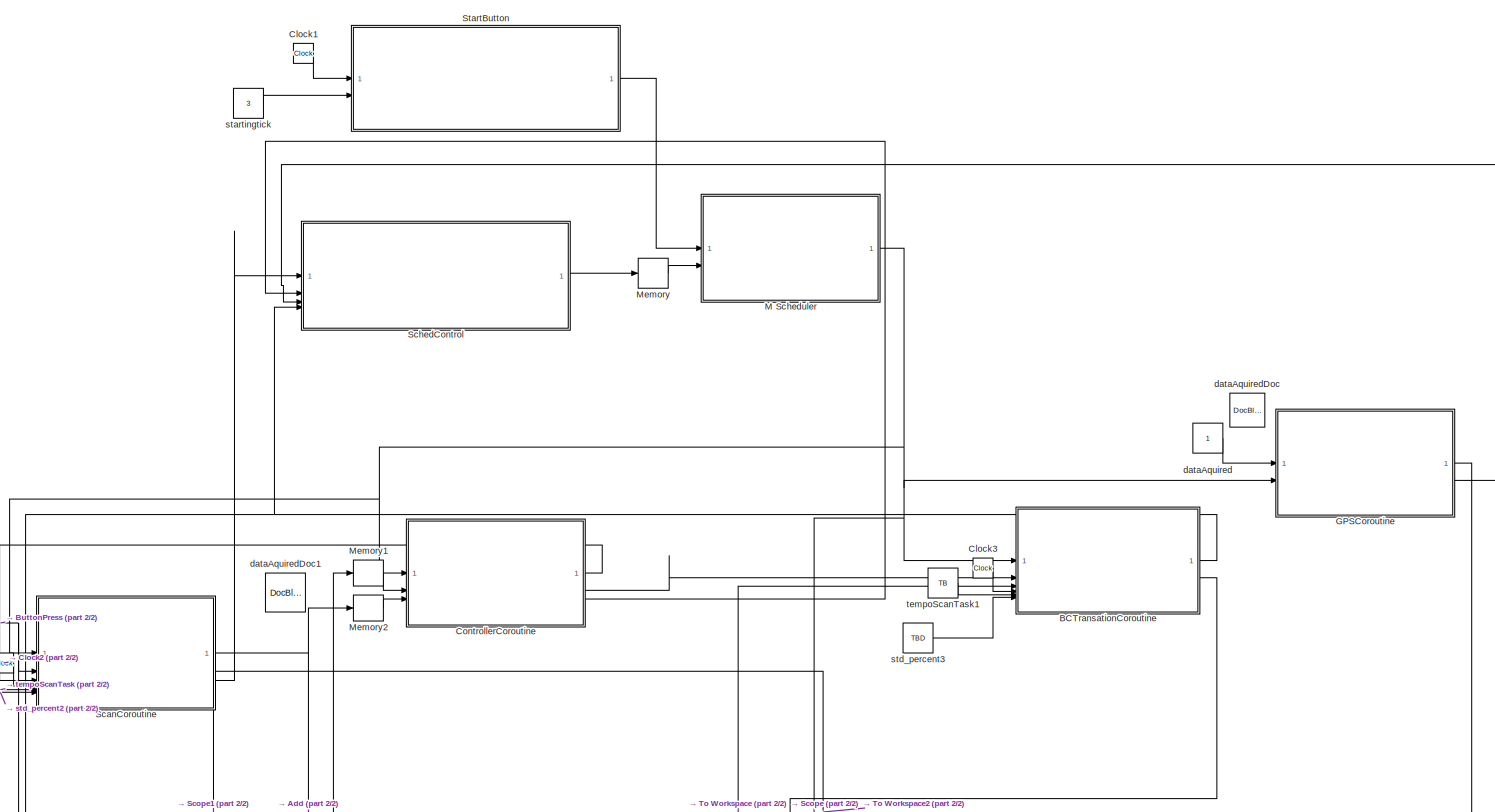
[diagram: root canvas - part 1/2, full width, middle band]
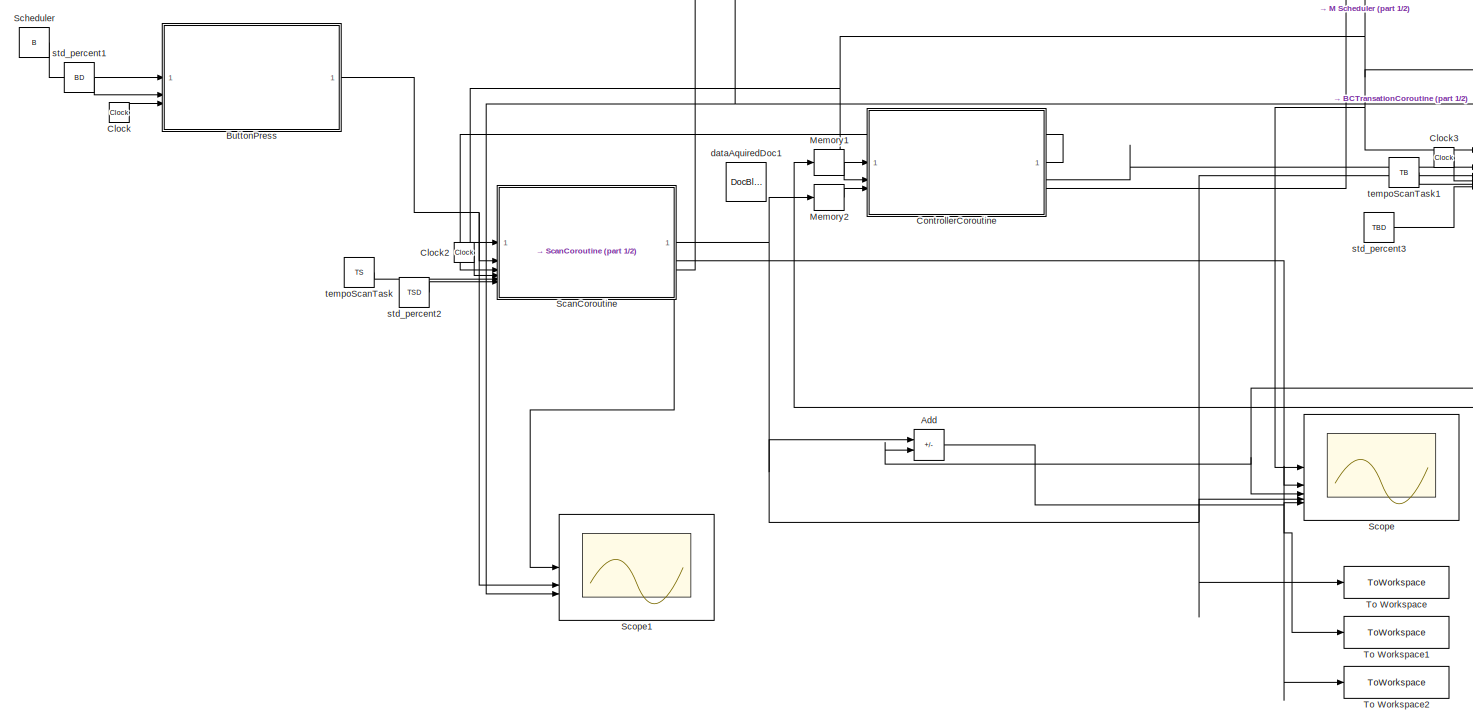
[diagram: root canvas - part 2/2, full width, bottom band]
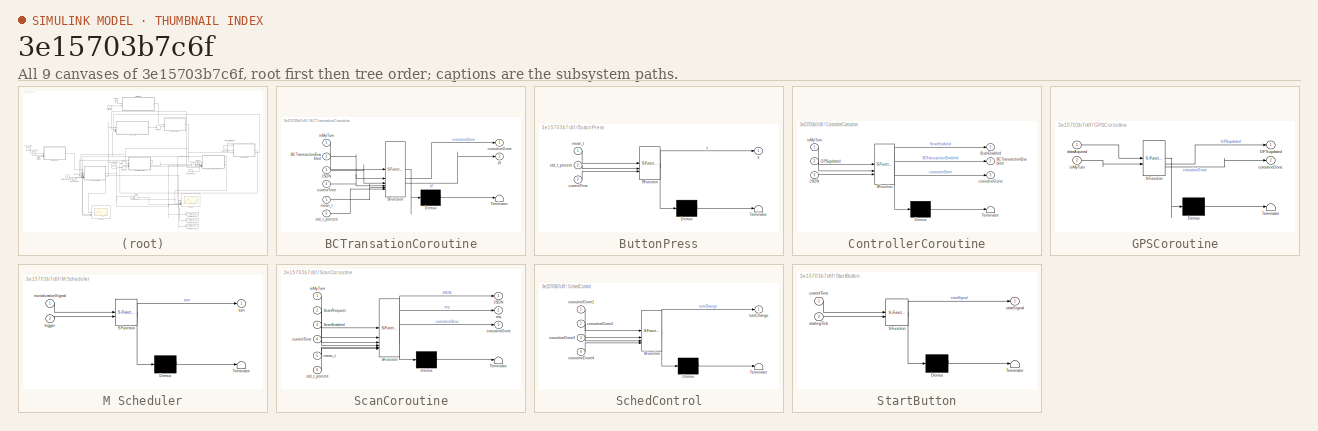
[diagram: thumbnail index - all 9 canvases of the model, root first then tree order]
MODEL slx_3e15703b7c6f
KIND model
CONFIG AbsTol = auto
CONFIG EnableMultiTasking = off
CONFIG FixedStep = 1
CONFIG MaxStep = auto
CONFIG MinStep = auto
CONFIG RelTol = 1e-3
CONFIG SampleTimeConstraint = Unconstrained
CONFIG SolverName = FixedStepAuto
CONFIG StartTime = 0.0
CONFIG StopTime = 100
BLOCK [Sum] Add
  IconShape = rectangular
  Inputs = +-
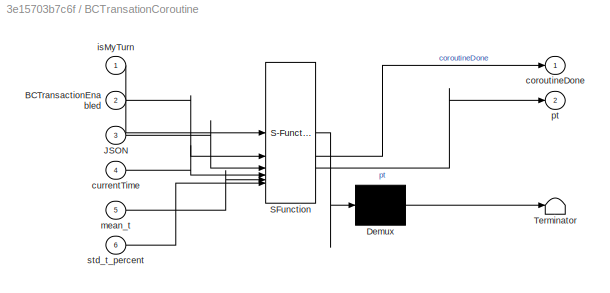
BLOCK [SubSystem] BCTransationCoroutine
  ErrorFcn = Stateflow.Translate.translate
  LibrarySourceBlock = simulink/User-Defined\nFunctions/MATLAB Function
  PermitHierarchicalResolution = ExplicitOnly
  SFBlockType = MATLAB Function
  TreatAsAtomicUnit = on
BLOCK [Demux] BCTransationCoroutine/ Demux 
  Outputs = 1
BLOCK [S-Function] BCTransationCoroutine/ SFunction 
  EnableBusSupport = on
  FunctionName = sf_sfun
  PortCounts = [6 3]
  SFcnIsStateOwnerBlock = off
  SFunctionDeploymentMode = off
  Tag = Stateflow S-Function 8
BLOCK [Terminator] BCTransationCoroutine/ Terminator 
BLOCK [Inport] BCTransationCoroutine/BCTransactionEnabled
  Port = 2
BLOCK [Inport] BCTransationCoroutine/JSON
  Port = 3
BLOCK [Outport] BCTransationCoroutine/coroutineDone
BLOCK [Inport] BCTransationCoroutine/currentTime
  Port = 4
BLOCK [Inport] BCTransationCoroutine/isMyTurn
BLOCK [Inport] BCTransationCoroutine/mean_t
  Port = 5
BLOCK [Outport] BCTransationCoroutine/pt
  Port = 2
BLOCK [Inport] BCTransationCoroutine/std_t_percent
  Port = 6
BLOCK [SubSystem] ButtonPress
  ErrorFcn = Stateflow.Translate.translate
  LibrarySourceBlock = simulink/User-Defined\nFunctions/MATLAB Function
  PermitHierarchicalResolution = ExplicitOnly
  SFBlockType = MATLAB Function
  TreatAsAtomicUnit = on
BLOCK [Demux] ButtonPress/ Demux 
  Outputs = 1
BLOCK [S-Function] ButtonPress/ SFunction 
  EnableBusSupport = on
  FunctionName = sf_sfun
  PortCounts = [3 2]
  SFcnIsStateOwnerBlock = off
  SFunctionDeploymentMode = off
  Tag = Stateflow S-Function 2
BLOCK [Terminator] ButtonPress/ Terminator 
BLOCK [Inport] ButtonPress/currentTime
  Port = 3
BLOCK [Inport] ButtonPress/mean_t
BLOCK [Inport] ButtonPress/std_t_percent
  Port = 2
BLOCK [Outport] ButtonPress/y
BLOCK [Clock] Clock
  DisplayTime = on
BLOCK [Clock] Clock1
  DisplayTime = on
BLOCK [Clock] Clock2
  DisplayTime = on
BLOCK [Clock] Clock3
  DisplayTime = on
BLOCK [SubSystem] ControllerCoroutine
  ErrorFcn = Stateflow.Translate.translate
  LibrarySourceBlock = simulink/User-Defined\nFunctions/MATLAB Function
  PermitHierarchicalResolution = ExplicitOnly
  SFBlockType = MATLAB Function
  TreatAsAtomicUnit = on
BLOCK [Demux] ControllerCoroutine/ Demux 
  Outputs = 1
BLOCK [S-Function] ControllerCoroutine/ SFunction 
  EnableBusSupport = on
  FunctionName = sf_sfun
  PortCounts = [3 4]
  SFcnIsStateOwnerBlock = off
  SFunctionDeploymentMode = off
  Tag = Stateflow S-Function 3
BLOCK [Terminator] ControllerCoroutine/ Terminator 
BLOCK [Outport] ControllerCoroutine/BCTransactionEnabled
  Port = 2
BLOCK [Inport] ControllerCoroutine/GPSupdated
  Port = 2
BLOCK [Inport] ControllerCoroutine/JSON
  Port = 3
BLOCK [Outport] ControllerCoroutine/ScanEnabled
BLOCK [Outport] ControllerCoroutine/coroutineDone
  Port = 3
BLOCK [Inport] ControllerCoroutine/isMyTurn
BLOCK [SubSystem] GPSCoroutine
  ErrorFcn = Stateflow.Translate.translate
  LibrarySourceBlock = simulink/User-Defined\nFunctions/MATLAB Function
  PermitHierarchicalResolution = ExplicitOnly
  SFBlockType = MATLAB Function
  TreatAsAtomicUnit = on
BLOCK [Demux] GPSCoroutine/ Demux 
  Outputs = 1
BLOCK [S-Function] GPSCoroutine/ SFunction 
  EnableBusSupport = on
  FunctionName = sf_sfun
  PortCounts = [2 3]
  SFcnIsStateOwnerBlock = off
  SFunctionDeploymentMode = off
  Tag = Stateflow S-Function 1
BLOCK [Terminator] GPSCoroutine/ Terminator 
BLOCK [Outport] GPSCoroutine/GPSupdated
BLOCK [Outport] GPSCoroutine/coroutineDone
  Port = 2
BLOCK [Inport] GPSCoroutine/dataAquired
BLOCK [Inport] GPSCoroutine/isMyTurn
  Port = 2
BLOCK [SubSystem] M Scheduler
  ErrorFcn = Stateflow.Translate.translate
  LibrarySourceBlock = simulink/User-Defined\nFunctions/MATLAB Function
  PermitHierarchicalResolution = ExplicitOnly
  SFBlockType = MATLAB Function
  TreatAsAtomicUnit = on
BLOCK [Demux] M Scheduler/ Demux 
  Outputs = 1
BLOCK [S-Function] M Scheduler/ SFunction 
  EnableBusSupport = on
  FunctionName = sf_sfun
  PortCounts = [2 2]
  SFcnIsStateOwnerBlock = off
  SFunctionDeploymentMode = off
  Tag = Stateflow S-Function 4
BLOCK [Terminator] M Scheduler/ Terminator 
BLOCK [Inport] M Scheduler/inizializationSignal
BLOCK [Inport] M Scheduler/trigger
  Port = 2
BLOCK [Outport] M Scheduler/turn
BLOCK [Memory] Memory
BLOCK [Memory] Memory1
BLOCK [Memory] Memory2
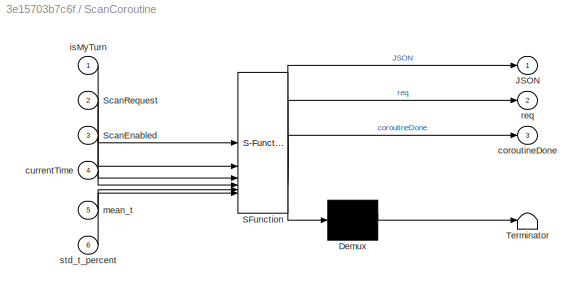
BLOCK [SubSystem] ScanCoroutine
  ErrorFcn = Stateflow.Translate.translate
  LibrarySourceBlock = simulink/User-Defined\nFunctions/MATLAB Function
  PermitHierarchicalResolution = ExplicitOnly
  SFBlockType = MATLAB Function
  TreatAsAtomicUnit = on
BLOCK [Demux] ScanCoroutine/ Demux 
  Outputs = 1
BLOCK [S-Function] ScanCoroutine/ SFunction 
  EnableBusSupport = on
  FunctionName = sf_sfun
  PortCounts = [6 4]
  SFcnIsStateOwnerBlock = off
  SFunctionDeploymentMode = off
  Tag = Stateflow S-Function 5
BLOCK [Terminator] ScanCoroutine/ Terminator 
BLOCK [Outport] ScanCoroutine/JSON
BLOCK [Inport] ScanCoroutine/ScanEnabled
  Port = 3
BLOCK [Inport] ScanCoroutine/ScanRequest
  Port = 2
BLOCK [Outport] ScanCoroutine/coroutineDone
  Port = 3
BLOCK [Inport] ScanCoroutine/currentTime
  Port = 4
BLOCK [Inport] ScanCoroutine/isMyTurn
BLOCK [Inport] ScanCoroutine/mean_t
  Port = 5
BLOCK [Outport] ScanCoroutine/req
  Port = 2
BLOCK [Inport] ScanCoroutine/std_t_percent
  Port = 6
BLOCK [SubSystem] SchedControl
  ErrorFcn = Stateflow.Translate.translate
  LibrarySourceBlock = simulink/User-Defined\nFunctions/MATLAB Function
  PermitHierarchicalResolution = ExplicitOnly
  SFBlockType = MATLAB Function
  TreatAsAtomicUnit = on
BLOCK [Demux] SchedControl/ Demux 
  Outputs = 1
BLOCK [S-Function] SchedControl/ SFunction 
  EnableBusSupport = on
  FunctionName = sf_sfun
  PortCounts = [4 2]
  SFcnIsStateOwnerBlock = off
  SFunctionDeploymentMode = off
  Tag = Stateflow S-Function 6
BLOCK [Terminator] SchedControl/ Terminator 
BLOCK [Inport] SchedControl/coroutineDone1
BLOCK [Inport] SchedControl/coroutineDone2
  Port = 2
BLOCK [Inport] SchedControl/coroutineDone3
  Port = 3
BLOCK [Inport] SchedControl/coroutineDone4
  Port = 4
BLOCK [Outport] SchedControl/turnChange
BLOCK [Constant] Scheduler
  Value = B
BLOCK [Scope] Scope
  Floating = off
  NumInputPorts = 5
  ScopeSpecificationString = Simulink.scopes.TimeScopeBlockCfg('CurrentConfiguration', extmgr.ConfigurationSet(extmgr.Configuration('Core','General UI',true),extmgr.Configuration('Core','Source UI',true),extmgr.Configuration('Sources','WiredSimulink',true),extmgr.Configuration('Visuals','Time Domain',true,'SerializedDisplays',{struct('MinYLimReal','-3.625','MaxYLimReal','22.625','YLabelReal','','MinYLimMag','0.00000','MaxYLim...<+1650ch>
BLOCK [Scope] Scope1
  Floating = off
  NumInputPorts = 5
  ScopeSpecificationString = Simulink.scopes.TimeScopeBlockCfg('CurrentConfiguration', extmgr.ConfigurationSet(extmgr.Configuration('Core','General UI',true),extmgr.Configuration('Core','Source UI',true),extmgr.Configuration('Sources','WiredSimulink',true,'DataLoggingVariableName','ScopeData1'),extmgr.Configuration('Visuals','Time Domain',true,'SerializedDisplays',{struct('MinYLimReal','-0.125','MaxYLimReal','2.5','YLabelReal...<+1682ch>
BLOCK [SubSystem] StartButton
  ErrorFcn = Stateflow.Translate.translate
  LibrarySourceBlock = simulink/User-Defined\nFunctions/MATLAB Function
  PermitHierarchicalResolution = ExplicitOnly
  SFBlockType = MATLAB Function
  TreatAsAtomicUnit = on
BLOCK [Demux] StartButton/ Demux 
  Outputs = 1
BLOCK [S-Function] StartButton/ SFunction 
  EnableBusSupport = on
  FunctionName = sf_sfun
  PortCounts = [2 2]
  SFcnIsStateOwnerBlock = off
  SFunctionDeploymentMode = off
  Tag = Stateflow S-Function 7
BLOCK [Terminator] StartButton/ Terminator 
BLOCK [Inport] StartButton/currentTime
BLOCK [Outport] StartButton/startSignal
BLOCK [Inport] StartButton/startingTick
  Port = 2
BLOCK [ToWorkspace] To Workspace
  FixptAsFi = on
  MaxDataPoints = inf
  SampleTime = -1
  SaveFormat = Timeseries
  VariableName = json
BLOCK [ToWorkspace] To Workspace1
  FixptAsFi = on
  MaxDataPoints = inf
  SampleTime = -1
  SaveFormat = Timeseries
  VariableName = bctQueue
BLOCK [ToWorkspace] To Workspace2
  FixptAsFi = on
  MaxDataPoints = inf
  SampleTime = -1
  SaveFormat = Timeseries
  VariableName = requests
BLOCK [Constant] dataAquired
BLOCK [Reference] dataAquiredDoc  REF=simulink/Model-Wide
Utilities/DocBlock
  SourceBlock = simulink/Model-Wide\nUtilities/DocBlock
  SourceType = DocBlock
  UserDataPersistent = on
BLOCK [Reference] dataAquiredDoc1  REF=simulink/Model-Wide
Utilities/DocBlock
  SourceBlock = simulink/Model-Wide\nUtilities/DocBlock
  SourceType = DocBlock
  UserDataPersistent = on
BLOCK [Constant] startingtick
  Value = 3
BLOCK [Constant] std_percent1
  Value = BD
BLOCK [Constant] std_percent2
  Value = TSD
BLOCK [Constant] std_percent3
  Value = TBD
BLOCK [Constant] tempoScanTask
  Value = TS
BLOCK [Constant] tempoScanTask1
  Value = TB
NET Add:1 -> Scope:5, To Workspace1:1
NET BCTransationCoroutine:1 -> SchedControl:4, Scope1:3
NET BCTransationCoroutine:2 -> Add:2, Scope:3
NET ButtonPress:1 -> ScanCoroutine:2, Scope1:2
LINE Clock1:1 -> StartButton:1
LINE Clock2:1 -> ScanCoroutine:4
LINE Clock3:1 -> BCTransationCoroutine:4
LINE Clock:1 -> ButtonPress:3
LINE ControllerCoroutine:1 -> ScanCoroutine:3
LINE ControllerCoroutine:2 -> BCTransationCoroutine:2
LINE ControllerCoroutine:3 -> SchedControl:2
LINE GPSCoroutine:1 -> Memory1:1
LINE GPSCoroutine:2 -> SchedControl:3
NET M Scheduler:1 -> BCTransationCoroutine:1, ControllerCoroutine:1, GPSCoroutine:2, ScanCoroutine:1, Scope:1
LINE Memory1:1 -> ControllerCoroutine:2
LINE Memory2:1 -> ControllerCoroutine:3
LINE Memory:1 -> M Scheduler:2
NET ScanCoroutine:1 -> Add:1, BCTransationCoroutine:3, Memory2:1, Scope:4, To Workspace:1
NET ScanCoroutine:2 -> Scope:2, To Workspace2:1
NET ScanCoroutine:3 -> SchedControl:1, Scope1:1
LINE SchedControl:1 -> Memory:1
LINE Scheduler:1 -> ButtonPress:1
LINE StartButton:1 -> M Scheduler:1
LINE dataAquired:1 -> GPSCoroutine:1
LINE startingtick:1 -> StartButton:2
LINE std_percent1:1 -> ButtonPress:2
LINE std_percent2:1 -> ScanCoroutine:6
LINE std_percent3:1 -> BCTransationCoroutine:6
LINE tempoScanTask1:1 -> BCTransationCoroutine:5
LINE tempoScanTask:1 -> ScanCoroutine:5
note: NET lines group one-source signal fan-out (src -> all destinations, sorted); 1:1 wires keep LINE
CHART GPSCoroutine states=1 transitions=1
  STATE_LABEL 'eML_blk_kernel()'
  STATE_LABEL 'SCRIPT:\nfunction [GPSupdated, coroutineDone] = gpsCoroutine(dataAquired, isMyTurn)\n\n    persistent state;\n    \n    if isempty(state)\n        state = 0;\n    end\n    \n    % se non è il turno della coroutine\n    if isMyTurn == 0\n \n        if dataAquired == 1\n            state = 1;  % GPS update completato\n        end\n\n        coroutineDone = 1;  % Coroutine completata\n    else \n        coroutineDone ...<+243ch>'
CHART ButtonPress states=1 transitions=1
  STATE_LABEL 'eML_blk_kernel()'
  STATE_LABEL 'SCRIPT:\nfunction y = signalGenerator(mean_t, std_t_percent, currentTime)\n    % derivazione standard in percentuale\n    std_t = (mean_t * std_t_percent) / 100;\n\n    persistent nextTriggerTime\n\n    % inizializza triggerTime\n    if isempty(nextTriggerTime)\n        nextTriggerTime = mean_t + std_t * randn; % rende funzione stocastica\n    end\n\n    % controllo se generare il segnale\n    if currentTime >...<+152ch>'
CHART ControllerCoroutine states=1 transitions=1
  STATE_LABEL 'eML_blk_kernel()'
  STATE_LABEL 'SCRIPT:\nfunction [ScanEnabled, BCTransactionEnabled, coroutineDone] = ControllerCoroutine(isMyTurn, GPSupdated, JSON)\n    % ScanEnabled: indica se la scansione è abilitata (1 o 0)\n    % BCTransactionEnabled: indica se la transazione BC è abilitata (1 o 0)\n\n    % mantengono lo stato della coroutine\n    persistent scanState bctState;\n\n    % inizializzazione variabili\n    if isempty(scanState)\n      ...<+717ch>'
CHART M Scheduler states=1 transitions=1
  STATE_LABEL 'eML_blk_kernel()'
  STATE_LABEL 'SCRIPT:\nfunction turn = scheduler(inizializationSignal, trigger)\n\n    persistent currentIndex prevTrigger;\n    \n    % inizializzazione variabili persistenti\n    if isempty(currentIndex)\n        currentIndex = -1;  \n    end\n    if isempty(prevTrigger)\n        prevTrigger = -1;  \n    end\n\n    if inizializationSignal == 1\n        currentIndex = 0;\n        prevTrigger = 0;\n    end\n\n    % controllo ris...<+263ch>'
CHART ScanCoroutine states=1 transitions=1
  STATE_LABEL 'eML_blk_kernel()'
  STATE_LABEL 'SCRIPT:\nfunction [JSON, req,coroutineDone] = ScanCoroutine(isMyTurn, ScanRequest, ScanEnabled, currentTime, mean_t, std_t_percent)\n    persistent state startTime on requests state2 t;\n\n    % inizializza varioabili\n    if isempty(state)\n        state = 0;\n        startTime = 0;\n        on = 0;\n        requests = 0;\n        state2 = 0;\n        t = mean_t;\n    end\n\n    if ScanRequest == 1\n        req...<+933ch>'
CHART SchedControl states=1 transitions=1
  STATE_LABEL 'eML_blk_kernel()'
  STATE_LABEL 'SCRIPT:\nfunction turnChange = schedulerControl(coroutineDone1, coroutineDone2, coroutineDone3, coroutineDone4)\n\n    persistent prevCoroutineDone1 prevCoroutineDone2 prevCoroutineDone3 prevCoroutineDone4 turnInProgress;\n\n    % inizializza variabili persistenti\n    if isempty(prevCoroutineDone1)\n        prevCoroutineDone1 = 0;\n        prevCoroutineDone2 = 0;\n        prevCoroutineDone3 = 0;\n        p...<+756ch>'
CHART StartButton states=1 transitions=1
  STATE_LABEL 'eML_blk_kernel()'
  STATE_LABEL 'SCRIPT:\nfunction startSignal = Inizializator(currentTime, startingTick)\n    startSignal = 0;\n    if currentTime == startingTick\n        startSignal = 1;  % inizia simulazione dopo tempo startingTick\n    end\nend\n\n'
CHART BCTransationCoroutine states=1 transitions=1
  STATE_LABEL 'eML_blk_kernel()'
  STATE_LABEL 'SCRIPT:\nfunction [coroutineDone, pt] = BCTransactionCoroutine(isMyTurn, BCTransactionEnabled, JSON, currentTime, mean_t, std_t_percent)\n\n    persistent state startTime on processedTransactions t;\n\n    % inizializza variabili persistenti\n    if isempty(state)\n        state = 0;\n        startTime = 0;\n        on = 0;\n        processedTransactions = 0;  % transazioni già elaborate\n        t = mean_t;...<+1171ch>'
CHART  states=0 transitions=0
CHART  states=0 transitions=0
CHART  states=0 transitions=0
CHART  states=0 transitions=0
CHART  states=0 transitions=0
CHART  states=0 transitions=0
CHART  states=0 transitions=0
CHART  states=0 transitions=0
